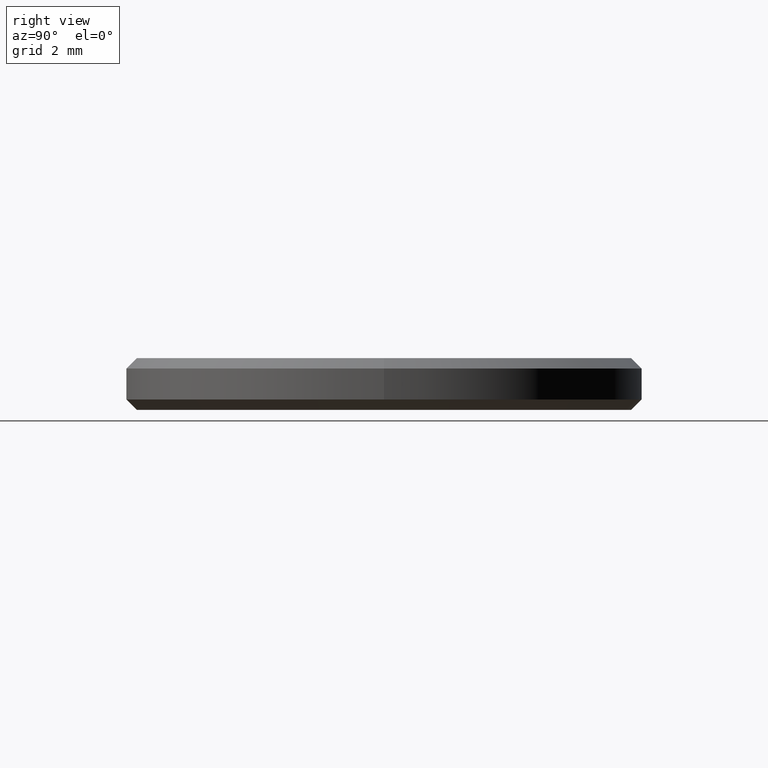
[diagram: clean part render]
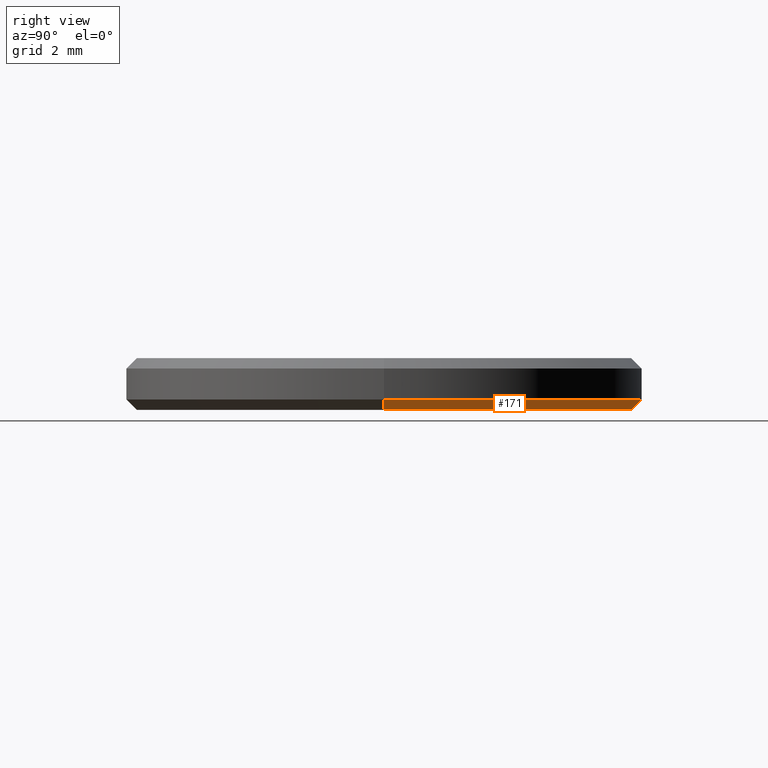
[diagram: same view with one face highlighted and labeled with its STEP entity id]
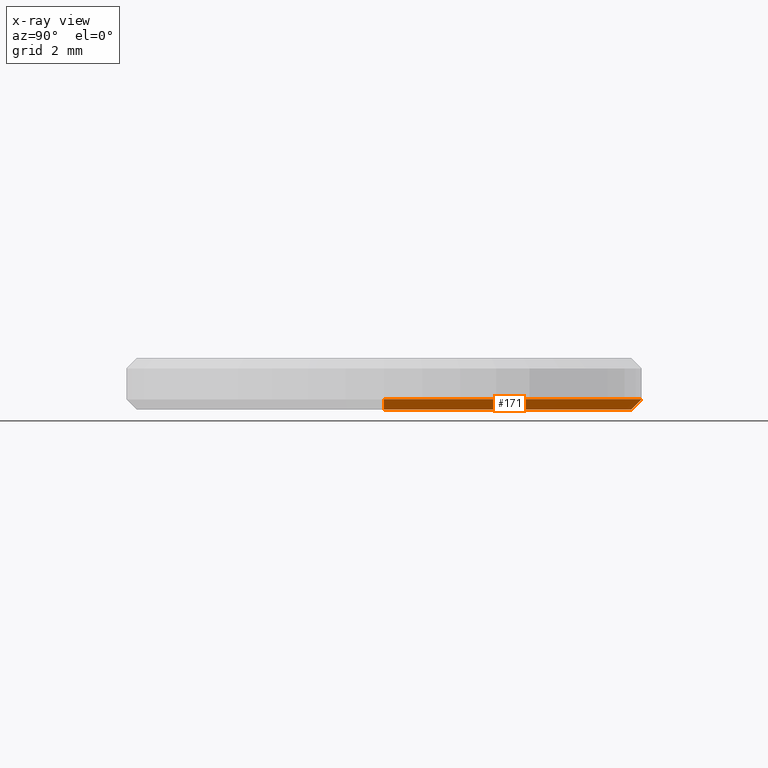
[diagram: x-ray of the same camera — body ghosted, the highlighted face saturated]
A machine part, right view. The second image highlights one B-rep face of the part: STEP entity #171.
The next image is the same camera in x-ray: the body ghosted, the highlighted face saturated — about 0% of this face is hidden behind the body in this view.
In plain terms, the highlighted conical surface has half-angle 45 deg.
Its self-contained STEP definition (entity closure, byte-faithful):
#8 = LINE ( 'NONE', #77, #120 ) ;
#9 = CARTESIAN_POINT ( 'NONE',  ( 5.000000000000000000, 6.123233995736766282E-16, 0.1999999999999996503 ) ) ;
#16 = FACE_OUTER_BOUND ( 'NONE', #87, .T. ) ;
#26 = CIRCLE ( 'NONE', #201, 4.799999999999999822 ) ;
#31 = CARTESIAN_POINT ( 'NONE',  ( -5.000000000000000000, 0.000000000000000000, 0.1999999999999996503 ) ) ;
#32 = VERTEX_POINT ( 'NONE', #41 ) ;
#41 = CARTESIAN_POINT ( 'NONE',  ( -4.799999999999999822, 6.000769315822029754E-16, 0.000000000000000000 ) ) ;
#46 = CIRCLE ( 'NONE', #190, 5.000000000000000000 ) ;
#49 = DIRECTION ( 'NONE',  ( -0.7071067811865490160, 8.659560562354950115E-17, 0.7071067811865459074 ) ) ;
#50 = EDGE_CURVE ( 'NONE', #66, #132, #46, .T. ) ;
#61 = DIRECTION ( 'NONE',  ( 0.7071067811865490160, 0.000000000000000000, 0.7071067811865459074 ) ) ;
#66 = VERTEX_POINT ( 'NONE', #9 ) ;
#74 = DIRECTION ( 'NONE',  ( -0.000000000000000000, -0.000000000000000000, -1.000000000000000000 ) ) ;
#77 = CARTESIAN_POINT ( 'NONE',  ( -5.000000000000000000, 6.123233995736765296E-16, 0.1999999999999996503 ) ) ;
#78 = CARTESIAN_POINT ( 'NONE',  ( 0.000000000000000000, 0.000000000000000000, 0.1999999999999996503 ) ) ;
#87 = EDGE_LOOP ( 'NONE', ( #206, #196, #90, #146 ) ) ;
#90 = ORIENTED_EDGE ( 'NONE', *, *, #50, .F. ) ;
#98 = DIRECTION ( 'NONE',  ( -0.000000000000000000, -0.000000000000000000, 1.000000000000000000 ) ) ;
#114 = CONICAL_SURFACE ( 'NONE', #225, 5.000000000000000000, 0.7853981633974503884 ) ;
#120 = VECTOR ( 'NONE', #49, 1000.000000000000000 ) ;
#132 = VERTEX_POINT ( 'NONE', #31 ) ;
#133 = CARTESIAN_POINT ( 'NONE',  ( 0.000000000000000000, 0.000000000000000000, 0.000000000000000000 ) ) ;
#135 = EDGE_CURVE ( 'NONE', #32, #132, #8, .T. ) ;
#146 = ORIENTED_EDGE ( 'NONE', *, *, #183, .F. ) ;
#150 = LINE ( 'NONE', #207, #237 ) ;
#154 = CARTESIAN_POINT ( 'NONE',  ( 4.799999999999999822, 0.000000000000000000, 0.000000000000000000 ) ) ;
#171 = ADVANCED_FACE ( 'NONE', ( #16 ), #114, .T. ) ;
#173 = DIRECTION ( 'NONE',  ( 1.000000000000000000, 0.000000000000000000, 0.000000000000000000 ) ) ;
#176 = DIRECTION ( 'NONE',  ( 1.000000000000000000, 0.000000000000000000, 0.000000000000000000 ) ) ;
#182 = DIRECTION ( 'NONE',  ( 1.000000000000000000, 0.000000000000000000, 0.000000000000000000 ) ) ;
#183 = EDGE_CURVE ( 'NONE', #221, #66, #150, .T. ) ;
#190 = AXIS2_PLACEMENT_3D ( 'NONE', #78, #98, #176 ) ;
#196 = ORIENTED_EDGE ( 'NONE', *, *, #135, .T. ) ;
#199 = DIRECTION ( 'NONE',  ( -0.000000000000000000, -0.000000000000000000, 1.000000000000000000 ) ) ;
#201 = AXIS2_PLACEMENT_3D ( 'NONE', #133, #74, #173 ) ;
#206 = ORIENTED_EDGE ( 'NONE', *, *, #219, .F. ) ;
#207 = CARTESIAN_POINT ( 'NONE',  ( 5.000000000000000000, 0.000000000000000000, 0.1999999999999996503 ) ) ;
#219 = EDGE_CURVE ( 'NONE', #32, #221, #26, .T. ) ;
#221 = VERTEX_POINT ( 'NONE', #154 ) ;
#225 = AXIS2_PLACEMENT_3D ( 'NONE', #238, #199, #182 ) ;
#237 = VECTOR ( 'NONE', #61, 1000.000000000000000 ) ;
#238 = CARTESIAN_POINT ( 'NONE',  ( 0.000000000000000000, 0.000000000000000000, 0.1999999999999996503 ) ) ;